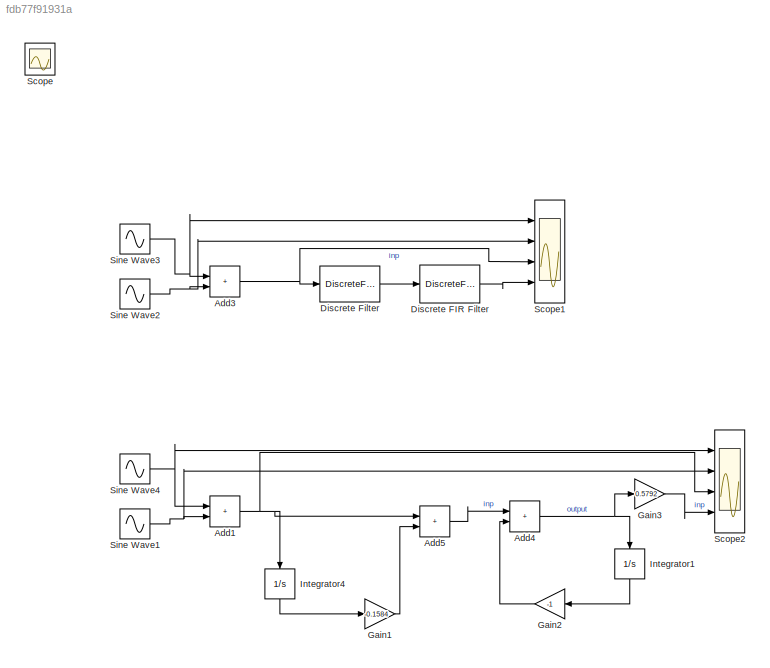
MODEL slx_fdb77f91931a
KIND model
CONFIG AbsTol = auto
CONFIG EnableMultiTasking = off
CONFIG FixedStep = auto
CONFIG MaxStep = 0.001
CONFIG MinStep = auto
CONFIG RelTol = 1e-3
CONFIG SampleTimeConstraint = Unconstrained
CONFIG SolverName = ode45
CONFIG StartTime = 0.0
CONFIG StopTime = 10.0
WORKSPACE source: mxarray member
WORKSPACE h2r = 5
BLOCK [Sum] Add1
  IconShape = rectangular
  Ports = [2, 1]
BLOCK [Sum] Add3
  Commented = on
  IconShape = rectangular
  Ports = [2, 1]
BLOCK [Sum] Add4
  IconShape = rectangular
  Ports = [2, 1]
BLOCK [Sum] Add5
  IconShape = rectangular
  Ports = [2, 1]
BLOCK [DiscreteFir] Discrete FIR Filter
  Coefficients = [1 -1]
  Commented = on
  InputPortMap = u0
  OutputPortMap = o0
  Ports = [1, 1]
BLOCK [DiscreteFilter] Discrete Filter
  Commented = on
  Denominator = [1 -0.1584]
  InputPortMap = u0
  Numerator = [0.5792]
  Ports = [1, 1]
BLOCK [Gain] Gain1
  Gain = -0.1584
BLOCK [Gain] Gain2
  Gain = -1
  NameLocation = top
BLOCK [Gain] Gain3
  Gain = 0.5792
BLOCK [Integrator] Integrator1
  NameLocation = left
  Ports = [1, 1]
BLOCK [Integrator] Integrator4
  NameLocation = left
  Ports = [1, 1]
BLOCK [Scope] Scope
  Floating = off
  IOType = viewer
  NumInputPorts = 1
  Ports = []
  ScopeSpecificationString = Simulink.scopes.TimeScopeBlockCfg('CurrentConfiguration', extmgr.ConfigurationSet(extmgr.Configuration('Core','General UI',true),extmgr.Configuration('Core','Source UI',true),extmgr.Configuration('Sources','WiredSimulink',true),extmgr.Configuration('Visuals','Time Domain',true,'SerializedDisplays',{struct('MinYLimReal','-56.57883','MaxYLimReal','55.20247','YLabelReal','','MinYLimMag','0.00000','Ma...<+3421ch>
BLOCK [Scope] Scope1
  Commented = on
  Floating = off
  NumInputPorts = 4
  Ports = [4]
  ScopeSpecificationString = Simulink.scopes.TimeScopeBlockCfg('CurrentConfiguration', extmgr.ConfigurationSet(extmgr.Configuration('Core','General UI',true),extmgr.Configuration('Core','Source UI',true),extmgr.Configuration('Sources','WiredSimulink',true,'DataLoggingVariableName','ScopeData1'),extmgr.Configuration('Visuals','Time Domain',true,'SerializedDisplays',{struct('MinYLimReal','-1.25','MaxYLimReal','1.25','YLabelReal...<+3451ch>
BLOCK [Scope] Scope2
  Floating = off
  NumInputPorts = 4
  Ports = [4]
  ScopeSpecificationString = Simulink.scopes.TimeScopeBlockCfg('CurrentConfiguration', extmgr.ConfigurationSet(extmgr.Configuration('Core','General UI',true),extmgr.Configuration('Core','Source UI',true),extmgr.Configuration('Sources','WiredSimulink',true,'DataLoggingVariableName','ScopeData1'),extmgr.Configuration('Visuals','Time Domain',true,'SerializedDisplays',{struct('MinYLimReal','-1.25','MaxYLimReal','1.25','YLabelReal...<+3478ch>
BLOCK [Sin] Sine Wave1
  Frequency = 100
  Ports = [0, 1]
  SampleTime = 0
BLOCK [Sin] Sine Wave2
  Commented = on
  Frequency = 100*h2r
  Ports = [0, 1]
  SampleTime = 0
BLOCK [Sin] Sine Wave3
  Commented = on
  Frequency = 1/5*h2r
  Ports = [0, 1]
  SampleTime = 0
BLOCK [Sin] Sine Wave4
  Ports = [0, 1]
  SampleTime = 0
NET Add1:1 -> Add5:1, Integrator4:1, Scope2:3
NET Add3:1 -> Discrete Filter:1, Scope1:3
NET Add4:1 -> Gain3:1, Integrator1:1
LINE Add5:1 -> Add4:1
LINE Discrete FIR Filter:1 -> Scope1:4
LINE Discrete Filter:1 -> Discrete FIR Filter:1
LINE Gain1:1 -> Add5:2
LINE Gain2:1 -> Add4:2
LINE Gain3:1 -> Scope2:4
LINE Integrator1:1 -> Gain2:1
LINE Integrator4:1 -> Gain1:1
NET Sine Wave1:1 -> Add1:2, Scope2:2
NET Sine Wave2:1 -> Add3:2, Scope1:2
NET Sine Wave3:1 -> Add3:1, Scope1:1
NET Sine Wave4:1 -> Add1:1, Scope2:1
note: NET lines group one-source signal fan-out (src -> all destinations, sorted); 1:1 wires keep LINE
